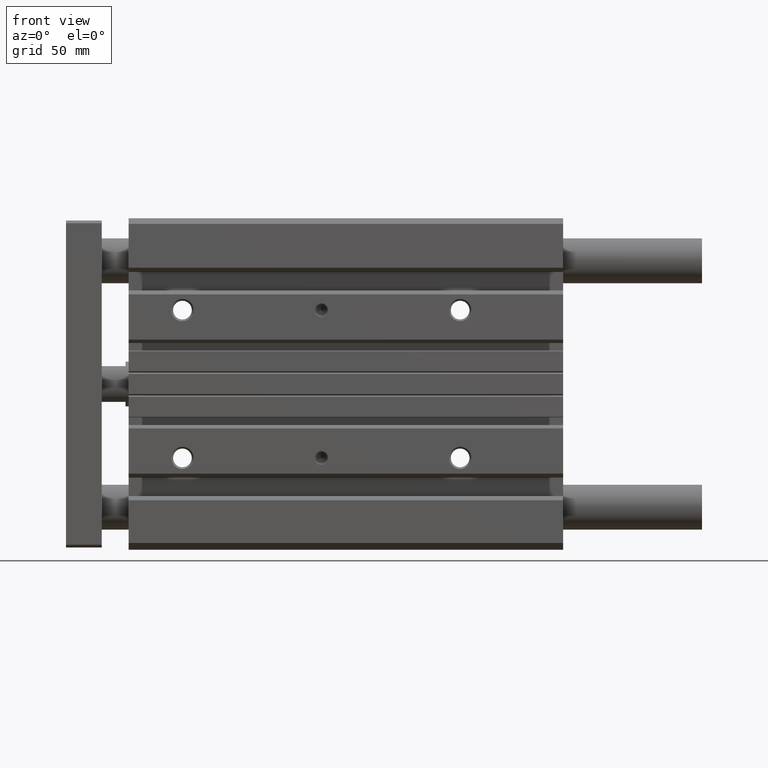
[diagram: clean part render]
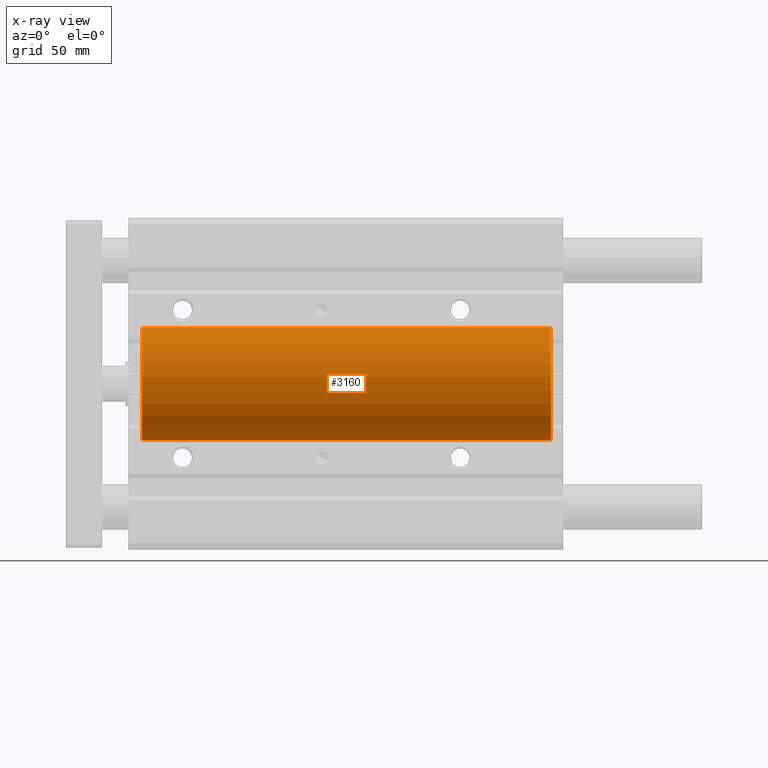
[diagram: x-ray — body ghosted, one internal face saturated and labeled with its STEP entity id]
A machine part, front view, then the same camera in x-ray: the body is ghosted and one INTERNAL B-rep face — a face not visible from any outside direction — is saturated and labeled: STEP entity #3160.
In plain terms, the highlighted cylindrical surface (partial cylindrical patch) has radius 25.0015 mm, axis along (-1, -0, -0).
Its self-contained STEP definition (entity closure, byte-faithful):
#429 = DIRECTION ( 'NONE',  ( 0.000000000000000000, 0.000000000000000000, 1.000000000000000000 ) ) ;
#533 = LINE ( 'NONE', #7636, #2088 ) ;
#780 = LINE ( 'NONE', #2774, #3075 ) ;
#1514 = CARTESIAN_POINT ( 'NONE',  ( 6.000000000000005329, 0.000000000000000000, 0.000000000000000000 ) ) ;
#1927 = AXIS2_PLACEMENT_3D ( 'NONE', #1514, #11582, #8413 ) ;
#2072 = EDGE_CURVE ( 'NONE', #6319, #12468, #6389, .T. ) ;
#2088 = VECTOR ( 'NONE', #2588, 1000.000000000000000 ) ;
#2150 = EDGE_CURVE ( 'NONE', #2430, #11089, #7655, .T. ) ;
#2430 = VERTEX_POINT ( 'NONE', #8329 ) ;
#2588 = DIRECTION ( 'NONE',  ( -1.000000000000000000, -0.000000000000000000, -0.000000000000000000 ) ) ;
#2774 = CARTESIAN_POINT ( 'NONE',  ( 0.000000000000000000, 0.000000000000000000, 25.00149999999996098 ) ) ;
#2874 = CARTESIAN_POINT ( 'NONE',  ( 188.5000000000000000, 0.000000000000000000, 25.00149999999995032 ) ) ;
#3075 = VECTOR ( 'NONE', #3148, 1000.000000000000000 ) ;
#3148 = DIRECTION ( 'NONE',  ( -1.000000000000000000, -0.000000000000000000, -0.000000000000000000 ) ) ;
#3160 = ADVANCED_FACE ( 'NONE', ( #11431 ), #7533, .F. ) ;
#3472 = CARTESIAN_POINT ( 'NONE',  ( 6.000000000000005329, 0.000000000000000000, 25.00149999999996808 ) ) ;
#3841 = CARTESIAN_POINT ( 'NONE',  ( 188.5000000000000000, 0.000000000000000000, 0.000000000000000000 ) ) ;
#4940 = AXIS2_PLACEMENT_3D ( 'NONE', #11292, #9512, #429 ) ;
#5442 = ORIENTED_EDGE ( 'NONE', *, *, #2150, .F. ) ;
#6319 = VERTEX_POINT ( 'NONE', #12812 ) ;
#6389 = CIRCLE ( 'NONE', #1927, 25.00149999999996808 ) ;
#6716 = EDGE_CURVE ( 'NONE', #2430, #6319, #533, .T. ) ;
#7533 = CYLINDRICAL_SURFACE ( 'NONE', #4940, 25.00149999999996098 ) ;
#7636 = CARTESIAN_POINT ( 'NONE',  ( 0.000000000000000000, 3.061800694888250406E-15, -25.00149999999996098 ) ) ;
#7655 = CIRCLE ( 'NONE', #8275, 25.00149999999995032 ) ;
#8275 = AXIS2_PLACEMENT_3D ( 'NONE', #3841, #8863, #11852 ) ;
#8329 = CARTESIAN_POINT ( 'NONE',  ( 188.5000000000000000, 3.061800694888250011E-15, -25.00149999999995032 ) ) ;
#8413 = DIRECTION ( 'NONE',  ( 0.000000000000000000, 0.000000000000000000, 1.000000000000000000 ) ) ;
#8813 = EDGE_LOOP ( 'NONE', ( #5442, #12379, #12634, #10763 ) ) ;
#8863 = DIRECTION ( 'NONE',  ( -1.000000000000000000, -0.000000000000000000, -0.000000000000000000 ) ) ;
#9512 = DIRECTION ( 'NONE',  ( -1.000000000000000000, -0.000000000000000000, -0.000000000000000000 ) ) ;
#9999 = EDGE_CURVE ( 'NONE', #11089, #12468, #780, .T. ) ;
#10763 = ORIENTED_EDGE ( 'NONE', *, *, #9999, .F. ) ;
#11089 = VERTEX_POINT ( 'NONE', #2874 ) ;
#11292 = CARTESIAN_POINT ( 'NONE',  ( 0.000000000000000000, 0.000000000000000000, 0.000000000000000000 ) ) ;
#11431 = FACE_OUTER_BOUND ( 'NONE', #8813, .T. ) ;
#11582 = DIRECTION ( 'NONE',  ( -1.000000000000000000, -0.000000000000000000, -0.000000000000000000 ) ) ;
#11852 = DIRECTION ( 'NONE',  ( 0.000000000000000000, 0.000000000000000000, 1.000000000000000000 ) ) ;
#12379 = ORIENTED_EDGE ( 'NONE', *, *, #6716, .T. ) ;
#12468 = VERTEX_POINT ( 'NONE', #3472 ) ;
#12634 = ORIENTED_EDGE ( 'NONE', *, *, #2072, .T. ) ;
#12812 = CARTESIAN_POINT ( 'NONE',  ( 6.000000000000005329, 3.061800694888251195E-15, -25.00149999999996808 ) ) ;